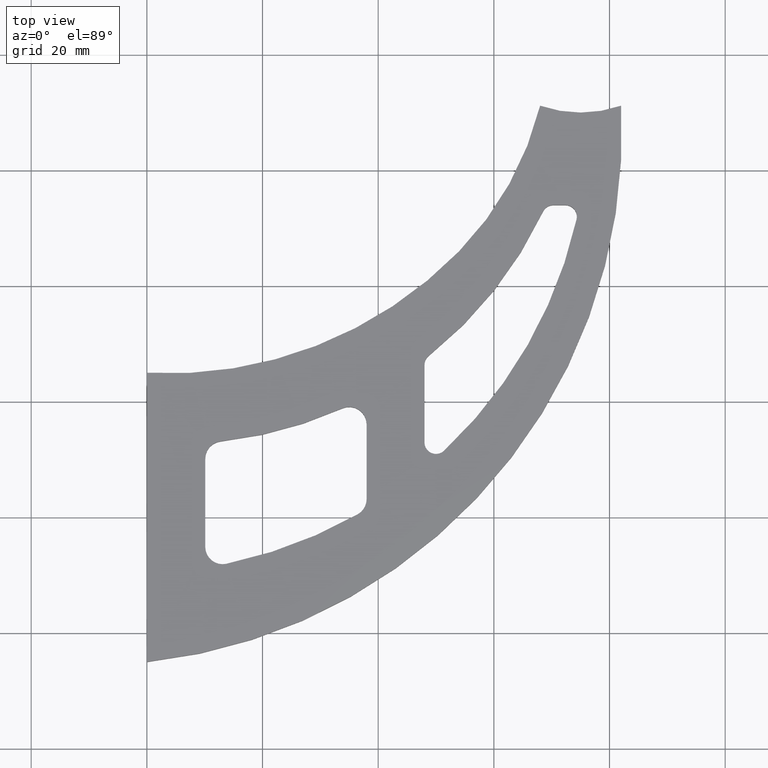
[diagram: clean part render]
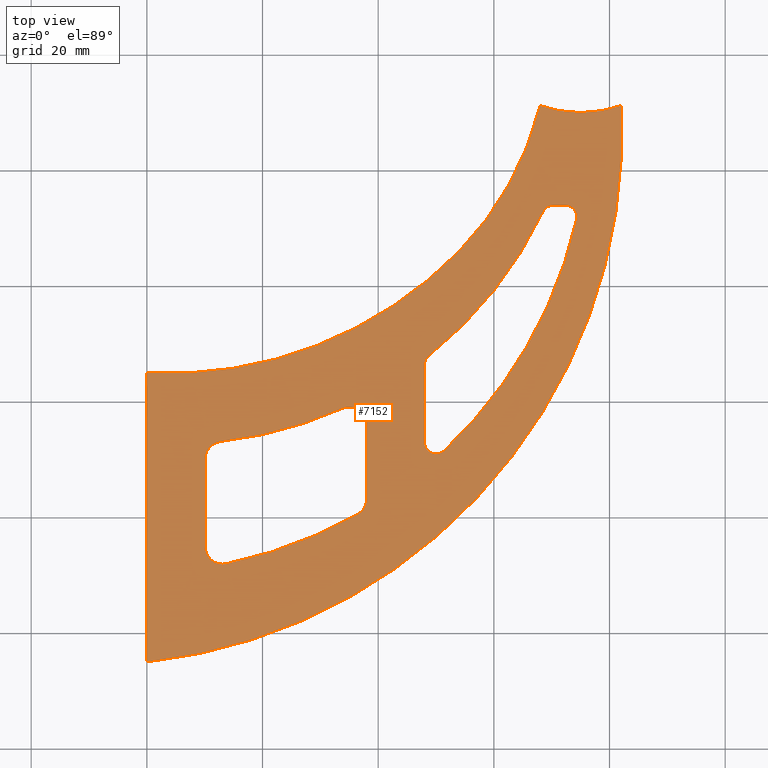
[diagram: same view with one face highlighted and labeled with its STEP entity id]
A machine part, top view. The second image highlights one B-rep face of the part: STEP entity #7152.
In plain terms, the highlighted planar face has unit normal (-0, 0, 1).
Its self-contained STEP definition (entity closure, byte-faithful):
#44 = DIRECTION ( 'NONE',  ( 1.069707489135335320E-15, 1.000000000000000000, 0.000000000000000000 ) ) ;
#96 = CARTESIAN_POINT ( 'NONE',  ( 5.180452133363093736, 82.72691493104838401, 2.000000000000000000 ) ) ;
#230 = CARTESIAN_POINT ( 'NONE',  ( 51.36664889296542924, 11.50453783003206532, 2.000000000000000000 ) ) ;
#262 = CARTESIAN_POINT ( 'NONE',  ( 5.180452133363093736, 82.72691493104838401, 2.000000000000000000 ) ) ;
#321 = DIRECTION ( 'NONE',  ( -0.000000000000000000, 0.000000000000000000, 1.000000000000000000 ) ) ;
#327 = VERTEX_POINT ( 'NONE', #11098 ) ;
#388 = DIRECTION ( 'NONE',  ( 3.686719223322513734E-16, -1.000000000000000000, 0.000000000000000000 ) ) ;
#466 = AXIS2_PLACEMENT_3D ( 'NONE', #6012, #321, #11061 ) ;
#506 = CARTESIAN_POINT ( 'NONE',  ( 48.00000000000022027, 27.35105087009876002, 2.000000000000001776 ) ) ;
#539 = VERTEX_POINT ( 'NONE', #5213 ) ;
#594 = DIRECTION ( 'NONE',  ( -0.000000000000000000, 0.000000000000000000, 1.000000000000000000 ) ) ;
#621 = DIRECTION ( 'NONE',  ( 0.000000000000000000, -0.000000000000000000, -1.000000000000000000 ) ) ;
#931 = ORIENTED_EDGE ( 'NONE', *, *, #12211, .F. ) ;
#1011 = CARTESIAN_POINT ( 'NONE',  ( 53.97457268643530881, 45.99999999999996447, 2.000000000000000000 ) ) ;
#1047 = AXIS2_PLACEMENT_3D ( 'NONE', #4781, #5665, #6770 ) ;
#1071 = AXIS2_PLACEMENT_3D ( 'NONE', #11596, #594, #5446 ) ;
#1139 = EDGE_CURVE ( 'NONE', #2153, #11892, #9823, .T. ) ;
#1193 = ORIENTED_EDGE ( 'NONE', *, *, #5308, .F. ) ;
#1212 = DIRECTION ( 'NONE',  ( -0.000000000000000000, 0.000000000000000000, 1.000000000000000000 ) ) ;
#1331 = DIRECTION ( 'NONE',  ( 1.000000000000000000, 0.000000000000000000, 0.000000000000000000 ) ) ;
#1353 = EDGE_CURVE ( 'NONE', #11363, #3004, #12663, .T. ) ;
#1374 = AXIS2_PLACEMENT_3D ( 'NONE', #2268, #4297, #8337 ) ;
#1411 = AXIS2_PLACEMENT_3D ( 'NONE', #6320, #3337, #10051 ) ;
#1556 = CIRCLE ( 'NONE', #10257, 78.50000000000000000 ) ;
#1596 = ORIENTED_EDGE ( 'NONE', *, *, #7758, .F. ) ;
#1612 = DIRECTION ( 'NONE',  ( 0.000000000000000000, -0.000000000000000000, -1.000000000000000000 ) ) ;
#1624 = CARTESIAN_POINT ( 'NONE',  ( 70.29463414327638304, 54.00000000000000711, 2.000000000000000000 ) ) ;
#1765 = FACE_BOUND ( 'NONE', #9907, .T. ) ;
#1782 = VERTEX_POINT ( 'NONE', #11411 ) ;
#1901 = VERTEX_POINT ( 'NONE', #5235 ) ;
#1917 = CARTESIAN_POINT ( 'NONE',  ( 13.10000000000000142, -5.099510724971153763, 2.000000000000000000 ) ) ;
#2138 = EDGE_CURVE ( 'NONE', #4567, #1782, #3364, .T. ) ;
#2153 = VERTEX_POINT ( 'NONE', #10172 ) ;
#2172 = AXIS2_PLACEMENT_3D ( 'NONE', #4607, #621, #6592 ) ;
#2177 = EDGE_CURVE ( 'NONE', #5838, #10779, #11715, .T. ) ;
#2183 = CARTESIAN_POINT ( 'NONE',  ( 14.61404249810564338, 84.41547426875771976, 2.000000000000000000 ) ) ;
#2268 = CARTESIAN_POINT ( 'NONE',  ( 70.29463414327638304, 52.00000000000000711, 2.000000000000000000 ) ) ;
#2336 = DIRECTION ( 'NONE',  ( 1.000000000000000000, -3.469446951953611033E-15, 0.000000000000000000 ) ) ;
#2374 = CARTESIAN_POINT ( 'NONE',  ( 38.00000000000022027, 16.09513148628879620, 2.000000000000001776 ) ) ;
#2512 = LINE ( 'NONE', #506, #10063 ) ;
#2550 = EDGE_CURVE ( 'NONE', #4567, #11892, #7279, .T. ) ;
#2635 = AXIS2_PLACEMENT_3D ( 'NONE', #11285, #3267, #10212 ) ;
#2700 = LINE ( 'NONE', #12486, #12304 ) ;
#2724 = CIRCLE ( 'NONE', #10144, 55.00000000000000711 ) ;
#2771 = VERTEX_POINT ( 'NONE', #1011 ) ;
#2808 = ORIENTED_EDGE ( 'NONE', *, *, #11769, .T. ) ;
#2850 = DIRECTION ( 'NONE',  ( 1.000000000000000000, 1.734723475976805517E-15, 0.000000000000000000 ) ) ;
#2860 = EDGE_CURVE ( 'NONE', #1901, #5261, #4748, .T. ) ;
#2869 = ORIENTED_EDGE ( 'NONE', *, *, #2550, .T. ) ;
#2915 = ORIENTED_EDGE ( 'NONE', *, *, #9085, .F. ) ;
#2923 = DIRECTION ( 'NONE',  ( 0.000000000000000000, -0.000000000000000000, -1.000000000000000000 ) ) ;
#2976 = LINE ( 'NONE', #7921, #7699 ) ;
#3004 = VERTEX_POINT ( 'NONE', #1624 ) ;
#3032 = ORIENTED_EDGE ( 'NONE', *, *, #2138, .F. ) ;
#3049 = VECTOR ( 'NONE', #7084, 1000.000000000000000 ) ;
#3062 = DIRECTION ( 'NONE',  ( 1.000000000000000000, 0.000000000000000000, 0.000000000000000000 ) ) ;
#3193 = CIRCLE ( 'NONE', #11997, 69.99999999999997158 ) ;
#3236 = VERTEX_POINT ( 'NONE', #2374 ) ;
#3262 = ORIENTED_EDGE ( 'NONE', *, *, #10551, .T. ) ;
#3267 = DIRECTION ( 'NONE',  ( 0.000000000000000000, -0.000000000000000000, -1.000000000000000000 ) ) ;
#3337 = DIRECTION ( 'NONE',  ( 0.000000000000000000, -0.000000000000000000, -1.000000000000000000 ) ) ;
#3364 = LINE ( 'NONE', #7038, #3049 ) ;
#3398 = CARTESIAN_POINT ( 'NONE',  ( 33.77453912876855924, 18.83342395662139523, 2.000000000000000000 ) ) ;
#3408 = VERTEX_POINT ( 'NONE', #4602 ) ;
#3468 = ORIENTED_EDGE ( 'NONE', *, *, #2860, .T. ) ;
#3716 = EDGE_CURVE ( 'NONE', #3408, #327, #9511, .T. ) ;
#4062 = EDGE_CURVE ( 'NONE', #12683, #11363, #10142, .T. ) ;
#4297 = DIRECTION ( 'NONE',  ( 0.000000000000000000, -0.000000000000000000, -1.000000000000000000 ) ) ;
#4359 = CARTESIAN_POINT ( 'NONE',  ( 72.35400050248671278, 52.00000000000000711, 2.000000000000000000 ) ) ;
#4386 = ORIENTED_EDGE ( 'NONE', *, *, #2177, .T. ) ;
#4399 = ORIENTED_EDGE ( 'NONE', *, *, #4897, .F. ) ;
#4465 = VECTOR ( 'NONE', #6259, 1000.000000000000000 ) ;
#4567 = VERTEX_POINT ( 'NONE', #8404 ) ;
#4602 = CARTESIAN_POINT ( 'NONE',  ( 10.09999999999999964, -5.099510724971154652, 2.000000000000000000 ) ) ;
#4607 = CARTESIAN_POINT ( 'NONE',  ( 13.09999999999999964, 10.15777023725963879, 2.000000000000000000 ) ) ;
#4743 = CARTESIAN_POINT ( 'NONE',  ( -2.274320155918185815, 68.81855391245915143, 2.000000000000000000 ) ) ;
#4748 = CIRCLE ( 'NONE', #12321, 69.99999999999998579 ) ;
#4781 = CARTESIAN_POINT ( 'NONE',  ( -9.878794471127335441, 66.46807869304582539, 2.000000000000000000 ) ) ;
#4892 = DIRECTION ( 'NONE',  ( 1.000000000000000000, 0.000000000000000000, 0.000000000000000000 ) ) ;
#4897 = EDGE_CURVE ( 'NONE', #2771, #2153, #2724, .T. ) ;
#4915 = ORIENTED_EDGE ( 'NONE', *, *, #9476, .F. ) ;
#5213 = CARTESIAN_POINT ( 'NONE',  ( 74.30506770924240811, 51.56029924411871690, 2.000000000000000000 ) ) ;
#5235 = CARTESIAN_POINT ( 'NONE',  ( 12.77453912876834252, 13.14006385481261674, 2.000000000000000000 ) ) ;
#5261 = VERTEX_POINT ( 'NONE', #3398 ) ;
#5308 = EDGE_CURVE ( 'NONE', #1782, #2771, #3193, .T. ) ;
#5446 = DIRECTION ( 'NONE',  ( 1.000000000000000000, 0.000000000000000000, 0.000000000000000000 ) ) ;
#5503 = CIRCLE ( 'NONE', #1071, 78.50000000000000000 ) ;
#5654 = CARTESIAN_POINT ( 'NONE',  ( 38.00000000000020606, 3.161299500520073025, 2.000000000000001776 ) ) ;
#5663 = DIRECTION ( 'NONE',  ( 1.000000000000000000, 0.000000000000000000, 0.000000000000000000 ) ) ;
#5665 = DIRECTION ( 'NONE',  ( -0.000000000000000000, 0.000000000000000000, 1.000000000000000000 ) ) ;
#5712 = DIRECTION ( 'NONE',  ( -0.000000000000000000, 0.000000000000000000, 1.000000000000000000 ) ) ;
#5788 = DIRECTION ( 'NONE',  ( 0.000000000000000000, -0.000000000000000000, -1.000000000000000000 ) ) ;
#5838 = VERTEX_POINT ( 'NONE', #5654 ) ;
#6012 = CARTESIAN_POINT ( 'NONE',  ( 0.000000000000000000, 0.000000000000000000, 2.000000000000000000 ) ) ;
#6259 = DIRECTION ( 'NONE',  ( 0.000000000000000000, 1.000000000000000000, -0.000000000000000000 ) ) ;
#6320 = CARTESIAN_POINT ( 'NONE',  ( 50.00000000000022737, 26.37792976689282298, 2.000000000000000000 ) ) ;
#6464 = ORIENTED_EDGE ( 'NONE', *, *, #11551, .T. ) ;
#6530 = ORIENTED_EDGE ( 'NONE', *, *, #1353, .T. ) ;
#6592 = DIRECTION ( 'NONE',  ( 1.000000000000000000, 0.000000000000000000, 0.000000000000000000 ) ) ;
#6770 = DIRECTION ( 'NONE',  ( 1.000000000000000000, 0.000000000000000000, 0.000000000000000000 ) ) ;
#6779 = FACE_OUTER_BOUND ( 'NONE', #6922, .T. ) ;
#6780 = DIRECTION ( 'NONE',  ( 1.000000000000000000, 2.312964634635740689E-15, 0.000000000000000000 ) ) ;
#6901 = EDGE_CURVE ( 'NONE', #3004, #7405, #2700, .T. ) ;
#6922 = EDGE_LOOP ( 'NONE', ( #1193, #3032, #2869, #8843, #4399 ) ) ;
#7009 = CARTESIAN_POINT ( 'NONE',  ( 72.35400050248671278, 54.00000000000000711, 2.000000000000000000 ) ) ;
#7038 = CARTESIAN_POINT ( 'NONE',  ( 1.110223024625135740E-12, -3.944304526105082560E-26, 2.000000000000000000 ) ) ;
#7084 = DIRECTION ( 'NONE',  ( 3.552713678800588651E-14, 1.000000000000000000, 0.000000000000000000 ) ) ;
#7105 = VERTEX_POINT ( 'NONE', #7642 ) ;
#7152 = ADVANCED_FACE ( 'NONE', ( #9625, #1765, #6779 ), #9949, .T. ) ;
#7197 = CIRCLE ( 'NONE', #2172, 3.000000000000000888 ) ;
#7279 = CIRCLE ( 'NONE', #1047, 91.99999999999938893 ) ;
#7405 = VERTEX_POINT ( 'NONE', #7009 ) ;
#7640 = DIRECTION ( 'NONE',  ( -0.000000000000000000, 0.000000000000000000, 1.000000000000000000 ) ) ;
#7642 = CARTESIAN_POINT ( 'NONE',  ( 48.00000000000022737, 12.96476753913849933, 2.000000000000001776 ) ) ;
#7693 = CARTESIAN_POINT ( 'NONE',  ( 36.48109881414266908, 0.5524019742178531978, 2.000000000000000000 ) ) ;
#7699 = VECTOR ( 'NONE', #44, 1000.000000000000000 ) ;
#7704 = ORIENTED_EDGE ( 'NONE', *, *, #8368, .T. ) ;
#7739 = CARTESIAN_POINT ( 'NONE',  ( 68.48590686522324233, 52.85352541475134558, 2.000000000000000000 ) ) ;
#7758 = EDGE_CURVE ( 'NONE', #8161, #10779, #5503, .T. ) ;
#7820 = ORIENTED_EDGE ( 'NONE', *, *, #9129, .T. ) ;
#7921 = CARTESIAN_POINT ( 'NONE',  ( 38.00000000000020606, 1.437331483813756972, 2.000000000000001776 ) ) ;
#8019 = ORIENTED_EDGE ( 'NONE', *, *, #4062, .T. ) ;
#8140 = AXIS2_PLACEMENT_3D ( 'NONE', #1917, #2923, #4892 ) ;
#8161 = VERTEX_POINT ( 'NONE', #8546 ) ;
#8337 = DIRECTION ( 'NONE',  ( 1.000000000000000000, 0.000000000000000000, 0.000000000000000000 ) ) ;
#8364 = DIRECTION ( 'NONE',  ( 0.000000000000000000, -0.000000000000000000, -1.000000000000000000 ) ) ;
#8368 = EDGE_CURVE ( 'NONE', #11908, #7105, #12592, .T. ) ;
#8399 = CARTESIAN_POINT ( 'NONE',  ( 48.00000000000022027, 26.37792976689282298, 2.000000000000001776 ) ) ;
#8404 = CARTESIAN_POINT ( 'NONE',  ( 2.220446049250313081E-13, -24.99999999999879918, 2.000000000000000000 ) ) ;
#8546 = CARTESIAN_POINT ( 'NONE',  ( 13.71090013864576207, -8.036652366193566266, 2.000000000000000000 ) ) ;
#8596 = ORIENTED_EDGE ( 'NONE', *, *, #6901, .T. ) ;
#8654 = CARTESIAN_POINT ( 'NONE',  ( 35.00000000000022737, 16.09513148628879975, 2.000000000000000000 ) ) ;
#8656 = AXIS2_PLACEMENT_3D ( 'NONE', #8654, #1612, #6780 ) ;
#8672 = EDGE_LOOP ( 'NONE', ( #4915, #4386, #1596, #2808, #12097, #12221, #3468, #7820 ) ) ;
#8759 = CARTESIAN_POINT ( 'NONE',  ( 74.99999999999998579, 91.20000000000000284, 2.000000000000000000 ) ) ;
#8813 = AXIS2_PLACEMENT_3D ( 'NONE', #262, #1212, #12283 ) ;
#8843 = ORIENTED_EDGE ( 'NONE', *, *, #1139, .F. ) ;
#8849 = CARTESIAN_POINT ( 'NONE',  ( 50.00000000000023448, 12.96476753913849933, 2.000000000000000000 ) ) ;
#9085 = EDGE_CURVE ( 'NONE', #11574, #7105, #2512, .T. ) ;
#9116 = DIRECTION ( 'NONE',  ( -0.000000000000000000, 0.000000000000000000, 1.000000000000000000 ) ) ;
#9129 = EDGE_CURVE ( 'NONE', #5261, #3236, #10219, .T. ) ;
#9454 = AXIS2_PLACEMENT_3D ( 'NONE', #8759, #7640, #9785 ) ;
#9476 = EDGE_CURVE ( 'NONE', #5838, #3236, #2976, .T. ) ;
#9511 = LINE ( 'NONE', #12336, #4465 ) ;
#9625 = FACE_BOUND ( 'NONE', #8672, .T. ) ;
#9785 = DIRECTION ( 'NONE',  ( 1.000000000000000000, 0.000000000000000000, 0.000000000000000000 ) ) ;
#9823 = CIRCLE ( 'NONE', #9454, 21.19999999999999574 ) ;
#9907 = EDGE_LOOP ( 'NONE', ( #931, #7704, #2915, #6464, #8019, #6530, #8596, #3262 ) ) ;
#9949 = PLANE ( 'NONE',  #466 ) ;
#9983 = AXIS2_PLACEMENT_3D ( 'NONE', #8849, #5788, #2850 ) ;
#10037 = CIRCLE ( 'NONE', #8140, 3.000000000000000888 ) ;
#10051 = DIRECTION ( 'NONE',  ( 1.000000000000000000, 6.938893903907222067E-15, 0.000000000000000000 ) ) ;
#10063 = VECTOR ( 'NONE', #388, 1000.000000000000000 ) ;
#10126 = DIRECTION ( 'NONE',  ( 1.000000000000000000, 0.000000000000000000, 0.000000000000000000 ) ) ;
#10142 = CIRCLE ( 'NONE', #8813, 69.99999999999998579 ) ;
#10144 = AXIS2_PLACEMENT_3D ( 'NONE', #2183, #12084, #3062 ) ;
#10172 = CARTESIAN_POINT ( 'NONE',  ( 68.00000000000000000, 71.18900302333739205, 2.000000000000000000 ) ) ;
#10212 = DIRECTION ( 'NONE',  ( 1.000000000000000000, -8.673617379884027583E-16, 0.000000000000000000 ) ) ;
#10219 = CIRCLE ( 'NONE', #8656, 3.000000000000002665 ) ;
#10257 = AXIS2_PLACEMENT_3D ( 'NONE', #4743, #5712, #12765 ) ;
#10551 = EDGE_CURVE ( 'NONE', #7405, #539, #10675, .T. ) ;
#10675 = CIRCLE ( 'NONE', #11278, 2.000000000000001776 ) ;
#10684 = CARTESIAN_POINT ( 'NONE',  ( 48.75501255926030097, 27.94317935478604653, 2.000000000000000000 ) ) ;
#10691 = CARTESIAN_POINT ( 'NONE',  ( 3.879352446742994065, 94.89242179660072907, 2.000000000000000000 ) ) ;
#10779 = VERTEX_POINT ( 'NONE', #7693 ) ;
#11061 = DIRECTION ( 'NONE',  ( 1.000000000000000000, 0.000000000000000000, 0.000000000000000000 ) ) ;
#11098 = CARTESIAN_POINT ( 'NONE',  ( 10.09999999999999964, 10.15777023725963879, 2.000000000000000000 ) ) ;
#11278 = AXIS2_PLACEMENT_3D ( 'NONE', #4359, #8364, #2336 ) ;
#11285 = CARTESIAN_POINT ( 'NONE',  ( 35.00000000000020606, 3.161299500520076133, 2.000000000000000000 ) ) ;
#11363 = VERTEX_POINT ( 'NONE', #7739 ) ;
#11411 = CARTESIAN_POINT ( 'NONE',  ( 1.998401444325281773E-12, 24.99999999999996803, 2.000000000000000000 ) ) ;
#11551 = EDGE_CURVE ( 'NONE', #11574, #12683, #11783, .T. ) ;
#11574 = VERTEX_POINT ( 'NONE', #8399 ) ;
#11596 = CARTESIAN_POINT ( 'NONE',  ( -2.274320155918185815, 68.81855391245915143, 2.000000000000000000 ) ) ;
#11715 = CIRCLE ( 'NONE', #2635, 3.000000000000002665 ) ;
#11717 = DIRECTION ( 'NONE',  ( -0.000000000000000000, 0.000000000000000000, 1.000000000000000000 ) ) ;
#11769 = EDGE_CURVE ( 'NONE', #8161, #3408, #10037, .T. ) ;
#11783 = CIRCLE ( 'NONE', #1411, 2.000000000000001776 ) ;
#11892 = VERTEX_POINT ( 'NONE', #12208 ) ;
#11908 = VERTEX_POINT ( 'NONE', #230 ) ;
#11997 = AXIS2_PLACEMENT_3D ( 'NONE', #10691, #11717, #5663 ) ;
#12084 = DIRECTION ( 'NONE',  ( -0.000000000000000000, 0.000000000000000000, 1.000000000000000000 ) ) ;
#12097 = ORIENTED_EDGE ( 'NONE', *, *, #3716, .T. ) ;
#12208 = CARTESIAN_POINT ( 'NONE',  ( 81.99999999999997158, 71.18900302333739205, 2.000000000000000000 ) ) ;
#12211 = EDGE_CURVE ( 'NONE', #11908, #539, #1556, .T. ) ;
#12221 = ORIENTED_EDGE ( 'NONE', *, *, #12555, .T. ) ;
#12283 = DIRECTION ( 'NONE',  ( 1.000000000000000000, 0.000000000000000000, 0.000000000000000000 ) ) ;
#12304 = VECTOR ( 'NONE', #1331, 1000.000000000000000 ) ;
#12321 = AXIS2_PLACEMENT_3D ( 'NONE', #96, #9116, #10126 ) ;
#12336 = CARTESIAN_POINT ( 'NONE',  ( 10.09999999999999964, 0.000000000000000000, 2.000000000000000000 ) ) ;
#12486 = CARTESIAN_POINT ( 'NONE',  ( 0.000000000000000000, 54.00000000000000711, 2.000000000000000000 ) ) ;
#12555 = EDGE_CURVE ( 'NONE', #327, #1901, #7197, .T. ) ;
#12592 = CIRCLE ( 'NONE', #9983, 2.000000000000001776 ) ;
#12663 = CIRCLE ( 'NONE', #1374, 2.000000000000001776 ) ;
#12683 = VERTEX_POINT ( 'NONE', #10684 ) ;
#12765 = DIRECTION ( 'NONE',  ( 1.000000000000000000, 0.000000000000000000, 0.000000000000000000 ) ) ;